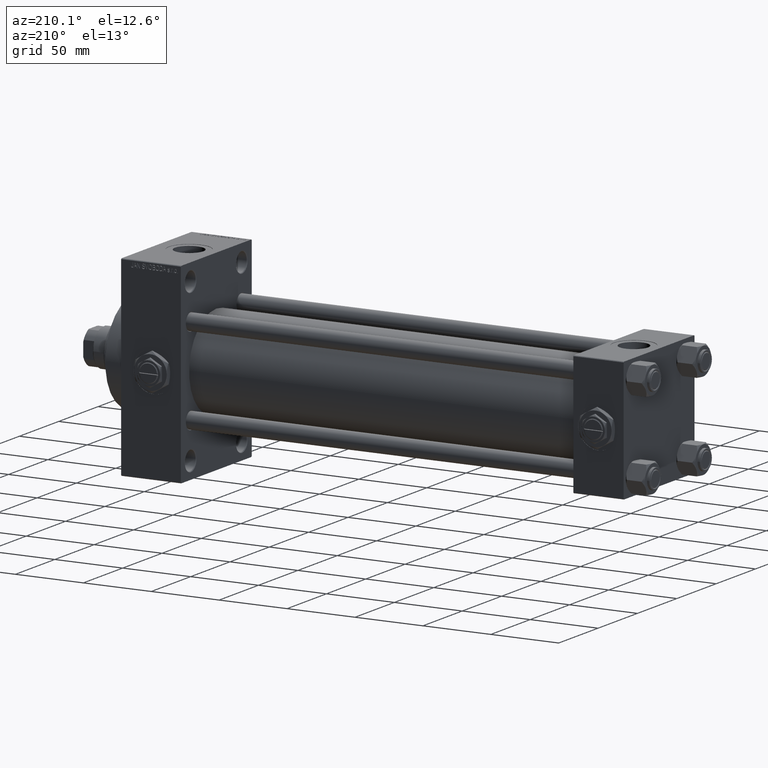
[diagram: clean part render]
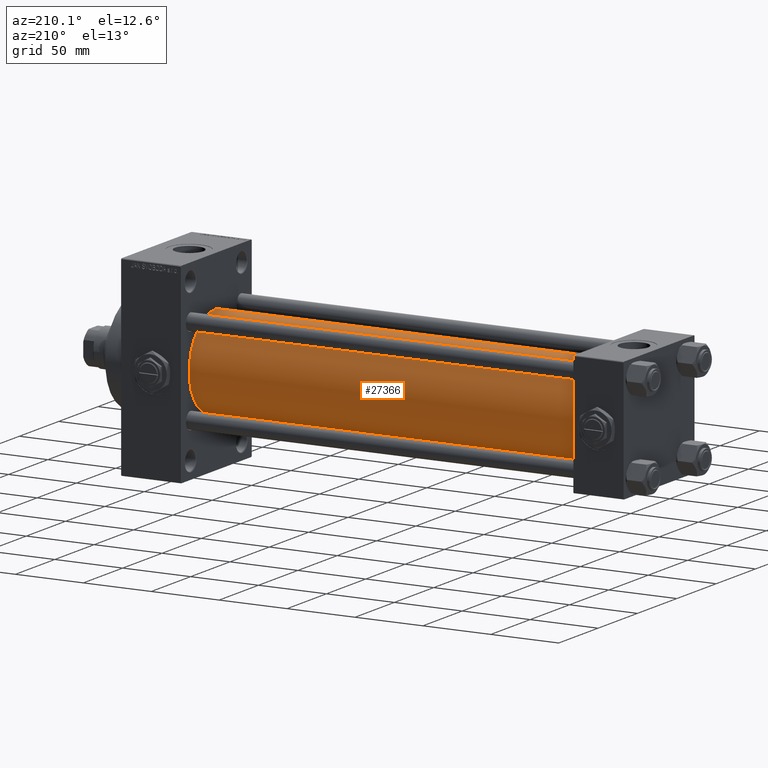
[diagram: same view with one face highlighted and labeled with its STEP entity id]
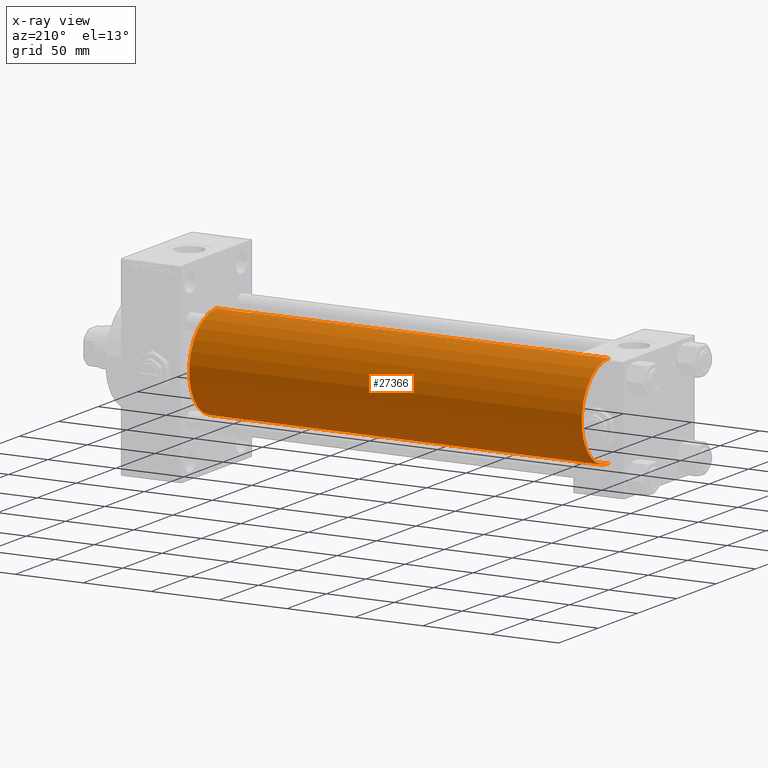
[diagram: x-ray of the same camera — body ghosted, the highlighted face saturated]
A machine part, auxiliary view. The second image highlights one B-rep face of the part: STEP entity #27366.
The next image is the same camera in x-ray: the body ghosted, the highlighted face saturated — about 0% of this face is hidden behind the body in this view.
In plain terms, the highlighted cylindrical surface (partial cylindrical patch) has radius 34.5 mm, axis along (-1, -0, -0).
Its self-contained STEP definition (entity closure, byte-faithful):
#3585 = ORIENTED_EDGE ( 'NONE', *, *, #45957, .F. ) ;
#4236 = DIRECTION ( 'NONE',  ( 0.000000000000000000, 0.000000000000000000, 1.000000000000000000 ) ) ;
#4265 = LINE ( 'NONE', #42629, #31823 ) ;
#5071 = DIRECTION ( 'NONE',  ( -1.000000000000000000, -0.000000000000000000, -0.000000000000000000 ) ) ;
#6921 = DIRECTION ( 'NONE',  ( 0.000000000000000000, 0.000000000000000000, -1.000000000000000000 ) ) ;
#7128 = VERTEX_POINT ( 'NONE', #37169 ) ;
#9003 = VERTEX_POINT ( 'NONE', #47829 ) ;
#9326 = ORIENTED_EDGE ( 'NONE', *, *, #13914, .T. ) ;
#12039 = DIRECTION ( 'NONE',  ( 0.000000000000000000, 0.000000000000000000, 1.000000000000000000 ) ) ;
#13025 = AXIS2_PLACEMENT_3D ( 'NONE', #26185, #41383, #4236 ) ;
#13914 = EDGE_CURVE ( 'NONE', #48692, #7128, #43189, .T. ) ;
#14470 = FACE_OUTER_BOUND ( 'NONE', #18409, .T. ) ;
#15245 = DIRECTION ( 'NONE',  ( -1.000000000000000000, -0.000000000000000000, -0.000000000000000000 ) ) ;
#18409 = EDGE_LOOP ( 'NONE', ( #48336, #9326, #46519, #3585 ) ) ;
#18608 = CIRCLE ( 'NONE', #46464, 34.50000000000000000 ) ;
#20765 = CARTESIAN_POINT ( 'NONE',  ( 36.99999999999997868, -2.602085213965210642E-15, 0.000000000000000000 ) ) ;
#21005 = EDGE_CURVE ( 'NONE', #7128, #21963, #21454, .T. ) ;
#21454 = CIRCLE ( 'NONE', #29407, 34.50000000000000000 ) ;
#21963 = VERTEX_POINT ( 'NONE', #36567 ) ;
#23755 = CARTESIAN_POINT ( 'NONE',  ( 325.9999999999999432, 1.622946243093158675E-15, -34.50000000000000000 ) ) ;
#26185 = CARTESIAN_POINT ( 'NONE',  ( 325.9999999999999432, -2.602085213965210642E-15, 0.000000000000000000 ) ) ;
#27366 = ADVANCED_FACE ( 'NONE', ( #14470 ), #45852, .T. ) ;
#27583 = EDGE_CURVE ( 'NONE', #48692, #9003, #18608, .T. ) ;
#29407 = AXIS2_PLACEMENT_3D ( 'NONE', #20765, #35708, #12039 ) ;
#29452 = CARTESIAN_POINT ( 'NONE',  ( 325.9999999999999432, 1.622946243093158675E-15, -34.50000000000000000 ) ) ;
#30043 = VECTOR ( 'NONE', #5071, 1000.000000000000000 ) ;
#31823 = VECTOR ( 'NONE', #15245, 1000.000000000000000 ) ;
#33583 = DIRECTION ( 'NONE',  ( 1.000000000000000000, 0.000000000000000000, 0.000000000000000000 ) ) ;
#35708 = DIRECTION ( 'NONE',  ( 1.000000000000000000, -0.000000000000000000, 0.000000000000000000 ) ) ;
#36567 = CARTESIAN_POINT ( 'NONE',  ( 36.99999999999997868, -2.602085213965210642E-15, 34.50000000000000000 ) ) ;
#37169 = CARTESIAN_POINT ( 'NONE',  ( 36.99999999999997868, 1.622946243093158675E-15, -34.50000000000000000 ) ) ;
#37829 = CARTESIAN_POINT ( 'NONE',  ( 325.9999999999999432, -2.602085213965210642E-15, 0.000000000000000000 ) ) ;
#41383 = DIRECTION ( 'NONE',  ( -1.000000000000000000, -0.000000000000000000, -0.000000000000000000 ) ) ;
#42629 = CARTESIAN_POINT ( 'NONE',  ( 325.9999999999999432, -2.602085213965210642E-15, 34.50000000000000000 ) ) ;
#43189 = LINE ( 'NONE', #23755, #30043 ) ;
#45852 = CYLINDRICAL_SURFACE ( 'NONE', #13025, 34.50000000000000000 ) ;
#45957 = EDGE_CURVE ( 'NONE', #9003, #21963, #4265, .T. ) ;
#46464 = AXIS2_PLACEMENT_3D ( 'NONE', #37829, #33583, #6921 ) ;
#46519 = ORIENTED_EDGE ( 'NONE', *, *, #21005, .T. ) ;
#47829 = CARTESIAN_POINT ( 'NONE',  ( 325.9999999999999432, -2.602085213965210642E-15, 34.50000000000000000 ) ) ;
#48336 = ORIENTED_EDGE ( 'NONE', *, *, #27583, .F. ) ;
#48692 = VERTEX_POINT ( 'NONE', #29452 ) ;